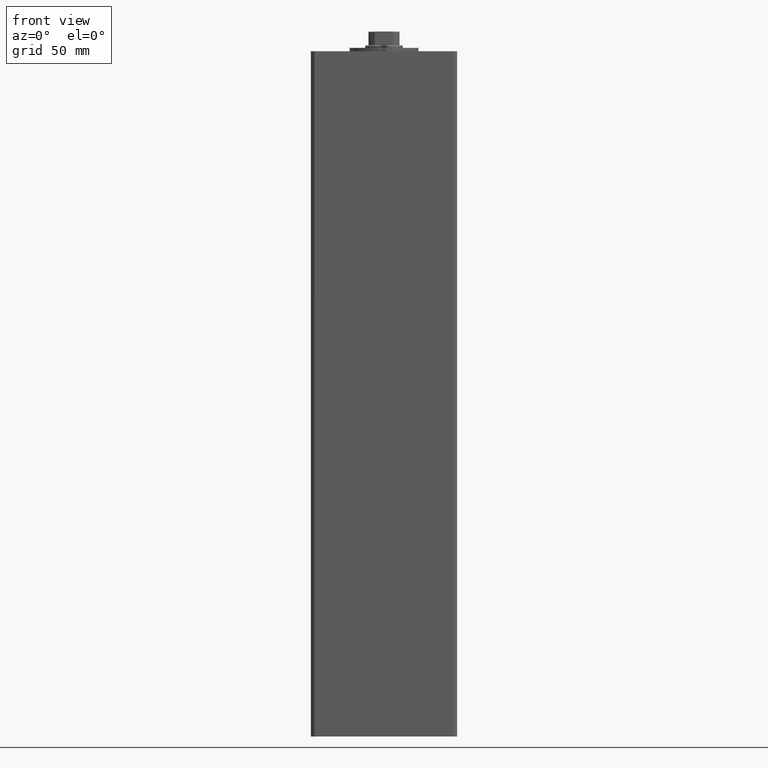
[diagram: clean part render]
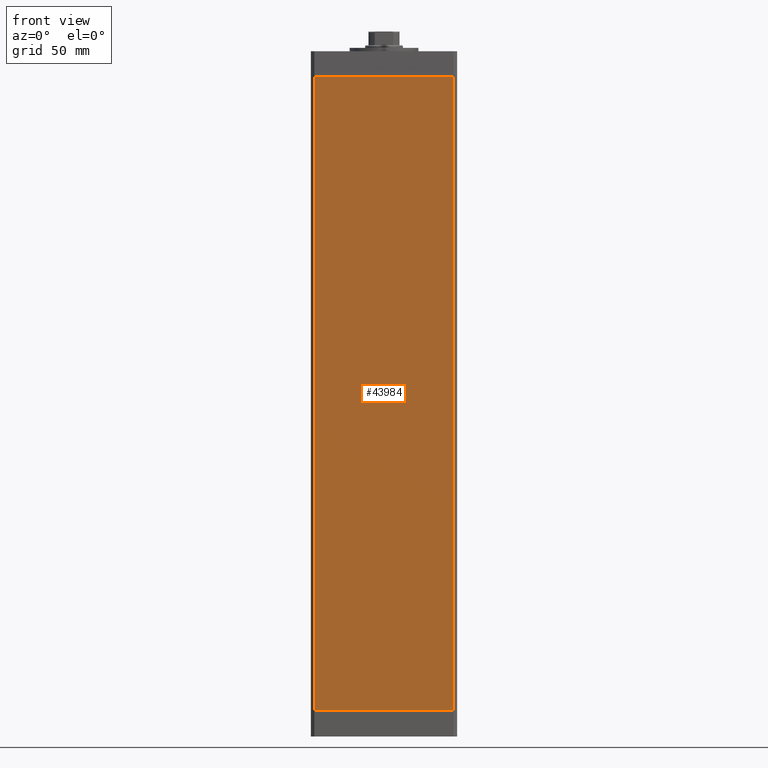
[diagram: same view with one face highlighted and labeled with its STEP entity id]
A machine part, front view. The second image highlights one B-rep face of the part: STEP entity #43984.
In plain terms, the highlighted planar face has unit normal (0, 1, 0).
Its self-contained STEP definition (entity closure, byte-faithful):
#2174 = CARTESIAN_POINT ( 'NONE',  ( 40.49999999999998579, -37.50000000000000711, 0.000000000000000000 ) ) ;
#2414 = EDGE_CURVE ( 'NONE', #38423, #20743, #46711, .T. ) ;
#4834 = ORIENTED_EDGE ( 'NONE', *, *, #31559, .T. ) ;
#6732 = CARTESIAN_POINT ( 'NONE',  ( -40.49999999999998579, -37.50000000000000711, 368.5000000000000000 ) ) ;
#6803 = DIRECTION ( 'NONE',  ( -0.000000000000000000, -0.000000000000000000, -1.000000000000000000 ) ) ;
#8001 = VECTOR ( 'NONE', #28317, 1000.000000000000000 ) ;
#8750 = CARTESIAN_POINT ( 'NONE',  ( -40.49999999999998579, -37.50000000000000711, 368.5000000000000000 ) ) ;
#9112 = VERTEX_POINT ( 'NONE', #36907 ) ;
#9879 = DIRECTION ( 'NONE',  ( 0.000000000000000000, 1.000000000000000000, 0.000000000000000000 ) ) ;
#10136 = DIRECTION ( 'NONE',  ( 0.000000000000000000, -0.000000000000000000, 1.000000000000000000 ) ) ;
#10648 = FACE_OUTER_BOUND ( 'NONE', #39890, .T. ) ;
#10722 = LINE ( 'NONE', #42675, #23015 ) ;
#17576 = CARTESIAN_POINT ( 'NONE',  ( -40.49999999999998579, -37.50000000000000711, 0.000000000000000000 ) ) ;
#18952 = CARTESIAN_POINT ( 'NONE',  ( -40.49999999999998579, -37.50000000000000711, 0.000000000000000000 ) ) ;
#19246 = CARTESIAN_POINT ( 'NONE',  ( -40.49999999999998579, -37.50000000000000711, 368.5000000000000000 ) ) ;
#20063 = EDGE_CURVE ( 'NONE', #40551, #9112, #36805, .T. ) ;
#20743 = VERTEX_POINT ( 'NONE', #2174 ) ;
#23015 = VECTOR ( 'NONE', #6803, 1000.000000000000000 ) ;
#23378 = DIRECTION ( 'NONE',  ( 1.000000000000000000, 0.000000000000000000, 0.000000000000000000 ) ) ;
#25361 = VECTOR ( 'NONE', #28421, 1000.000000000000000 ) ;
#27394 = ORIENTED_EDGE ( 'NONE', *, *, #44331, .F. ) ;
#28317 = DIRECTION ( 'NONE',  ( -0.000000000000000000, -0.000000000000000000, -1.000000000000000000 ) ) ;
#28421 = DIRECTION ( 'NONE',  ( 1.000000000000000000, 0.000000000000000000, 0.000000000000000000 ) ) ;
#29806 = AXIS2_PLACEMENT_3D ( 'NONE', #6732, #9879, #10136 ) ;
#31459 = ORIENTED_EDGE ( 'NONE', *, *, #20063, .F. ) ;
#31559 = EDGE_CURVE ( 'NONE', #40551, #38423, #10722, .T. ) ;
#36805 = LINE ( 'NONE', #8750, #25361 ) ;
#36907 = CARTESIAN_POINT ( 'NONE',  ( 40.49999999999998579, -37.50000000000000711, 368.5000000000000000 ) ) ;
#38423 = VERTEX_POINT ( 'NONE', #17576 ) ;
#38635 = LINE ( 'NONE', #39839, #8001 ) ;
#39839 = CARTESIAN_POINT ( 'NONE',  ( 40.49999999999998579, -37.50000000000000711, 368.5000000000000000 ) ) ;
#39890 = EDGE_LOOP ( 'NONE', ( #49660, #27394, #31459, #4834 ) ) ;
#40551 = VERTEX_POINT ( 'NONE', #19246 ) ;
#42675 = CARTESIAN_POINT ( 'NONE',  ( -40.49999999999998579, -37.50000000000000711, 368.5000000000000000 ) ) ;
#43381 = VECTOR ( 'NONE', #23378, 1000.000000000000000 ) ;
#43984 = ADVANCED_FACE ( 'NONE', ( #10648 ), #46017, .F. ) ;
#44331 = EDGE_CURVE ( 'NONE', #9112, #20743, #38635, .T. ) ;
#46017 = PLANE ( 'NONE',  #29806 ) ;
#46711 = LINE ( 'NONE', #18952, #43381 ) ;
#49660 = ORIENTED_EDGE ( 'NONE', *, *, #2414, .T. ) ;